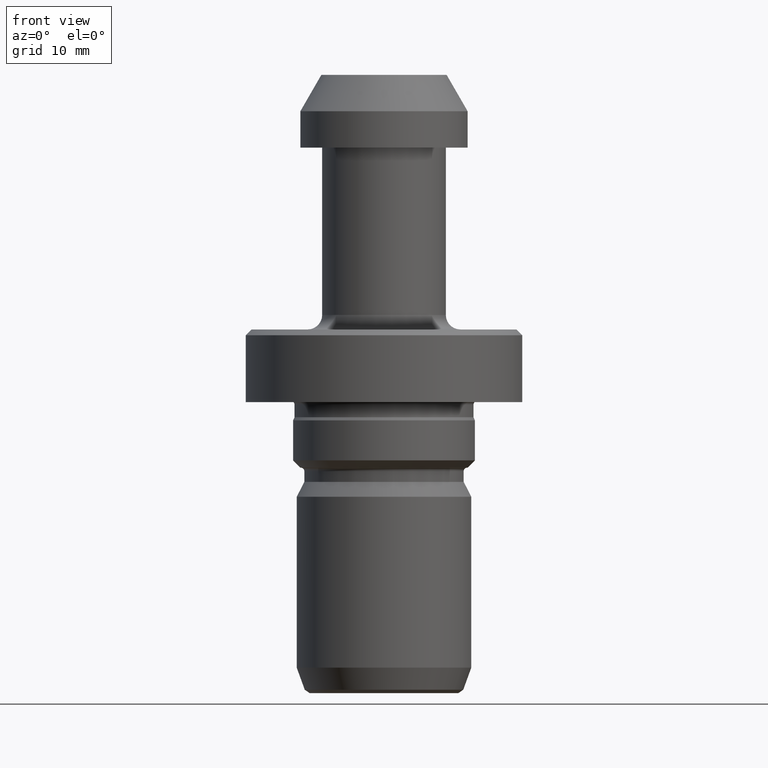
[diagram: clean part render]
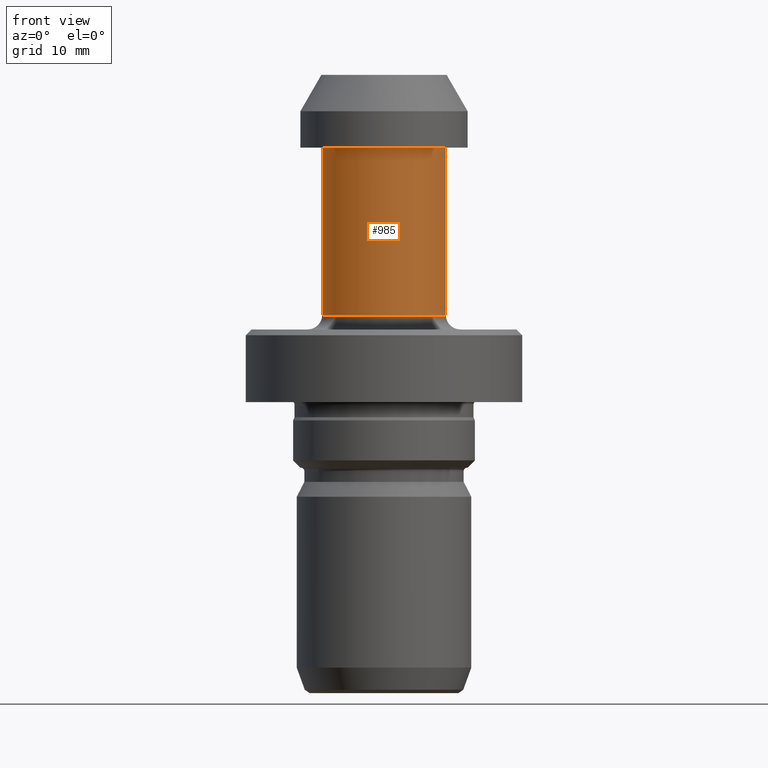
[diagram: same view with one face highlighted and labeled with its STEP entity id]
A machine part, front view. The second image highlights one B-rep face of the part: STEP entity #985.
In plain terms, the highlighted cylindrical surface (partial cylindrical patch) has radius 8.5 mm, axis along (-0, -0, 1).
Its self-contained STEP definition (entity closure, byte-faithful):
#7 = AXIS2_PLACEMENT_3D ( 'NONE', #142, #952, #331 ) ;
#39 = DIRECTION ( 'NONE',  ( -0.0000000000000000000, -0.0000000000000000000, 1.000000000000000000 ) ) ;
#67 = AXIS2_PLACEMENT_3D ( 'NONE', #637, #118, #725 ) ;
#70 = CARTESIAN_POINT ( 'NONE',  ( 0.0000000000000000000, 0.0000000000000000000, -32.99999999999998600 ) ) ;
#91 = EDGE_CURVE ( 'NONE', #608, #180, #279, .T. ) ;
#117 = ORIENTED_EDGE ( 'NONE', *, *, #777, .T. ) ;
#118 = DIRECTION ( 'NONE',  ( -0.0000000000000000000, -0.0000000000000000000, 1.000000000000000000 ) ) ;
#142 = CARTESIAN_POINT ( 'NONE',  ( 0.0000000000000000000, 0.0000000000000000000, 0.0000000000000000000 ) ) ;
#150 = CARTESIAN_POINT ( 'NONE',  ( 8.500000000000001800, 0.0000000000000000000, -32.99999999999998600 ) ) ;
#180 = VERTEX_POINT ( 'NONE', #150 ) ;
#259 = VECTOR ( 'NONE', #39, 1000.000000000000000 ) ;
#272 = ORIENTED_EDGE ( 'NONE', *, *, #91, .T. ) ;
#279 = CIRCLE ( 'NONE', #1131, 8.500000000000001800 ) ;
#292 = DIRECTION ( 'NONE',  ( -0.0000000000000000000, -0.0000000000000000000, 1.000000000000000000 ) ) ;
#321 = CARTESIAN_POINT ( 'NONE',  ( -8.500000000000000000, 1.040949779275250100E-015, -10.00000000000000200 ) ) ;
#331 = DIRECTION ( 'NONE',  ( 1.000000000000000000, 0.0000000000000000000, 0.0000000000000000000 ) ) ;
#393 = FACE_OUTER_BOUND ( 'NONE', #1144, .T. ) ;
#444 = VERTEX_POINT ( 'NONE', #321 ) ;
#490 = LINE ( 'NONE', #645, #259 ) ;
#571 = CIRCLE ( 'NONE', #67, 8.500000000000000000 ) ;
#580 = LINE ( 'NONE', #1085, #1029 ) ;
#602 = CYLINDRICAL_SURFACE ( 'NONE', #7, 8.500000000000000000 ) ;
#608 = VERTEX_POINT ( 'NONE', #1050 ) ;
#637 = CARTESIAN_POINT ( 'NONE',  ( 0.0000000000000000000, 0.0000000000000000000, -10.00000000000000200 ) ) ;
#645 = CARTESIAN_POINT ( 'NONE',  ( -8.500000000000000000, 1.040949779275250100E-015, 0.0000000000000000000 ) ) ;
#675 = DIRECTION ( 'NONE',  ( -0.0000000000000000000, -0.0000000000000000000, 1.000000000000000000 ) ) ;
#725 = DIRECTION ( 'NONE',  ( 1.000000000000000000, 0.0000000000000000000, 0.0000000000000000000 ) ) ;
#777 = EDGE_CURVE ( 'NONE', #180, #828, #580, .T. ) ;
#828 = VERTEX_POINT ( 'NONE', #1020 ) ;
#888 = ORIENTED_EDGE ( 'NONE', *, *, #1027, .F. ) ;
#952 = DIRECTION ( 'NONE',  ( -0.0000000000000000000, -0.0000000000000000000, 1.000000000000000000 ) ) ;
#985 = ADVANCED_FACE ( 'NONE', ( #393 ), #602, .T. ) ;
#991 = DIRECTION ( 'NONE',  ( 1.000000000000000000, 0.0000000000000000000, 0.0000000000000000000 ) ) ;
#1018 = ORIENTED_EDGE ( 'NONE', *, *, #1113, .F. ) ;
#1020 = CARTESIAN_POINT ( 'NONE',  ( 8.500000000000000000, 0.0000000000000000000, -10.00000000000000200 ) ) ;
#1027 = EDGE_CURVE ( 'NONE', #444, #828, #571, .T. ) ;
#1029 = VECTOR ( 'NONE', #292, 1000.000000000000000 ) ;
#1050 = CARTESIAN_POINT ( 'NONE',  ( -8.500000000000001800, 1.163414459189985900E-015, -32.99999999999998600 ) ) ;
#1085 = CARTESIAN_POINT ( 'NONE',  ( 8.500000000000000000, 0.0000000000000000000, 0.0000000000000000000 ) ) ;
#1113 = EDGE_CURVE ( 'NONE', #608, #444, #490, .T. ) ;
#1131 = AXIS2_PLACEMENT_3D ( 'NONE', #70, #675, #991 ) ;
#1144 = EDGE_LOOP ( 'NONE', ( #1018, #272, #117, #888 ) ) ;